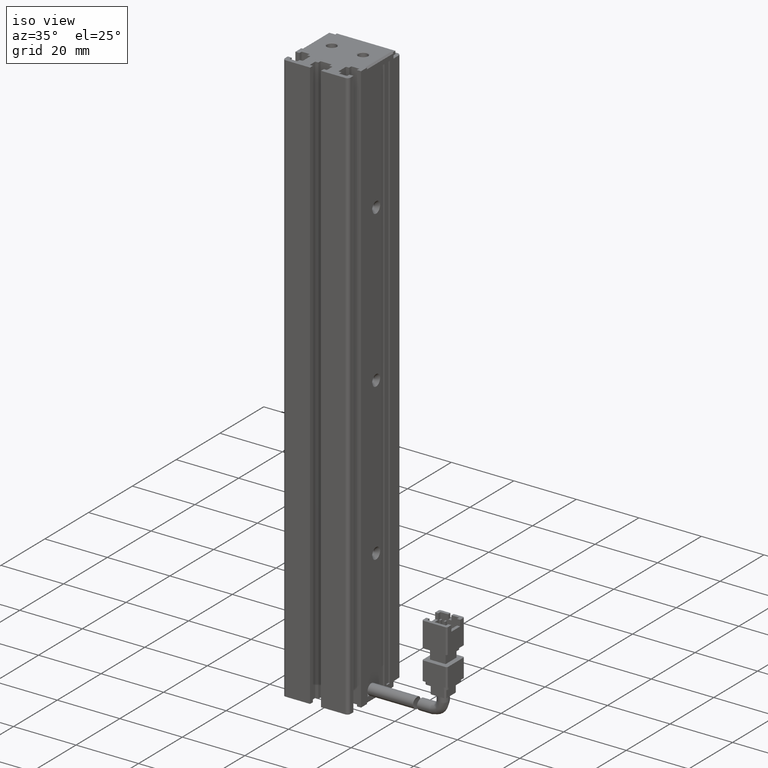
[diagram: clean part render]
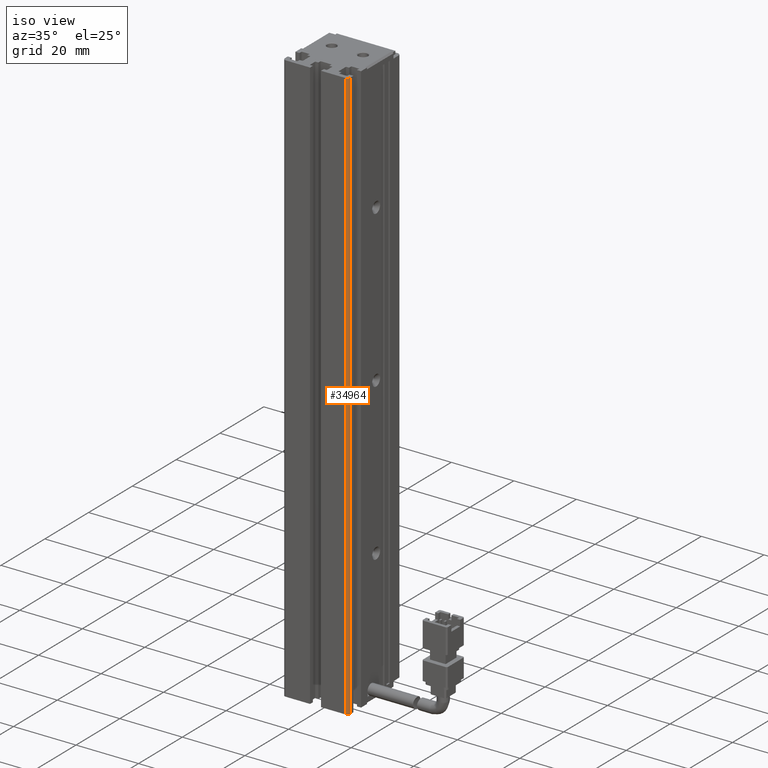
[diagram: same view with one face highlighted and labeled with its STEP entity id]
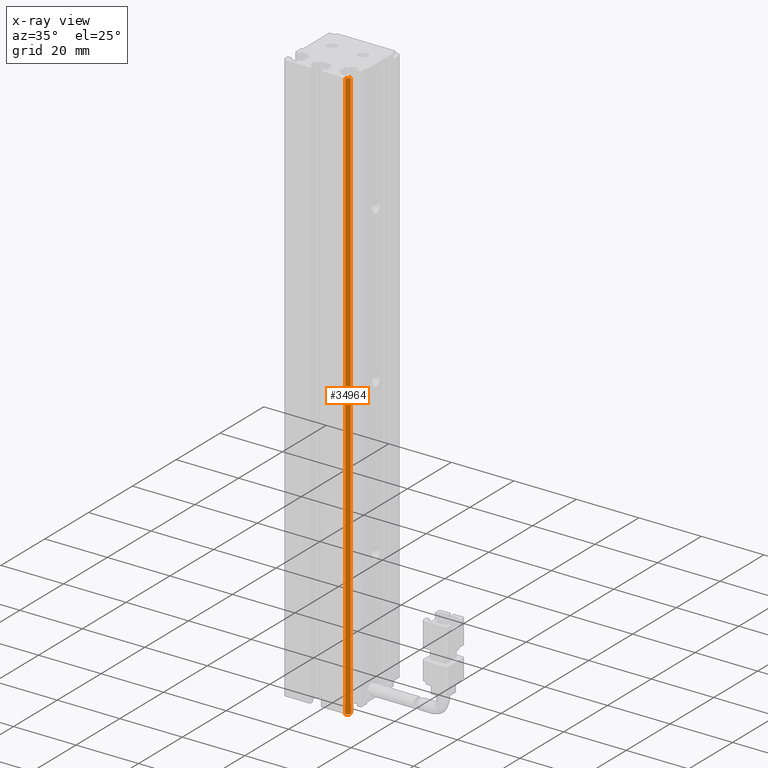
[diagram: x-ray of the same camera — body ghosted, the highlighted face saturated]
A machine part, iso view. The second image highlights one B-rep face of the part: STEP entity #34964.
The next image is the same camera in x-ray: the body ghosted, the highlighted face saturated — about 0% of this face is hidden behind the body in this view.
In plain terms, the highlighted cylindrical surface (edge-blend (fillet) strip) has radius 1 mm, axis along (-0, -0, -1).
Its self-contained STEP definition (entity closure, byte-faithful):
#427 = VERTEX_POINT ( 'NONE', #34402 ) ;
#522 = DIRECTION ( 'NONE',  ( -1.000000000000000000, 0.0000000000000000000, 0.0000000000000000000 ) ) ;
#3092 = ORIENTED_EDGE ( 'NONE', *, *, #47761, .T. ) ;
#3347 = VECTOR ( 'NONE', #28611, 1000.000000000000000 ) ;
#3386 = ORIENTED_EDGE ( 'NONE', *, *, #23377, .T. ) ;
#4337 = DIRECTION ( 'NONE',  ( 0.0000000000000000000, 0.0000000000000000000, 1.000000000000000000 ) ) ;
#4886 = CARTESIAN_POINT ( 'NONE',  ( 51.42537974683541800, 11.99073232304837000, -207.0000000000000300 ) ) ;
#11082 = CARTESIAN_POINT ( 'NONE',  ( 51.42537974683541800, 11.99073232304837000, -23.00000000000000700 ) ) ;
#11470 = CIRCLE ( 'NONE', #26201, 1.000000000000000900 ) ;
#15797 = CARTESIAN_POINT ( 'NONE',  ( 50.42537974683541800, 11.99073232304837000, -23.00000000000000700 ) ) ;
#15860 = ORIENTED_EDGE ( 'NONE', *, *, #38428, .T. ) ;
#17333 = CARTESIAN_POINT ( 'NONE',  ( 50.42537974683541800, 10.99073232304837000, -23.00000000000000700 ) ) ;
#20994 = DIRECTION ( 'NONE',  ( 0.0000000000000000000, 0.0000000000000000000, 1.000000000000000000 ) ) ;
#21494 = DIRECTION ( 'NONE',  ( -0.0000000000000000000, -0.0000000000000000000, -1.000000000000000000 ) ) ;
#23377 = EDGE_CURVE ( 'NONE', #28445, #40133, #11470, .T. ) ;
#25750 = ORIENTED_EDGE ( 'NONE', *, *, #45720, .T. ) ;
#26201 = AXIS2_PLACEMENT_3D ( 'NONE', #43821, #21494, #47596 ) ;
#26767 = LINE ( 'NONE', #17333, #3347 ) ;
#28322 = CARTESIAN_POINT ( 'NONE',  ( 51.42537974683541800, 11.99073232304837000, -23.00000000000000700 ) ) ;
#28445 = VERTEX_POINT ( 'NONE', #11082 ) ;
#28611 = DIRECTION ( 'NONE',  ( -0.0000000000000000000, 0.0000000000000000000, -1.000000000000000000 ) ) ;
#29947 = CIRCLE ( 'NONE', #31484, 1.000000000000000900 ) ;
#30579 = DIRECTION ( 'NONE',  ( -1.000000000000000000, 0.0000000000000000000, 0.0000000000000000000 ) ) ;
#31484 = AXIS2_PLACEMENT_3D ( 'NONE', #41607, #4337, #30579 ) ;
#34402 = CARTESIAN_POINT ( 'NONE',  ( 50.42537974683541800, 10.99073232304837000, -207.0000000000000300 ) ) ;
#34964 = ADVANCED_FACE ( 'NONE', ( #45925 ), #44782, .T. ) ;
#35463 = VERTEX_POINT ( 'NONE', #4886 ) ;
#37919 = LINE ( 'NONE', #28322, #42585 ) ;
#38428 = EDGE_CURVE ( 'NONE', #40133, #427, #26767, .T. ) ;
#38495 = AXIS2_PLACEMENT_3D ( 'NONE', #15797, #45633, #522 ) ;
#40120 = EDGE_LOOP ( 'NONE', ( #3386, #15860, #25750, #3092 ) ) ;
#40133 = VERTEX_POINT ( 'NONE', #43771 ) ;
#41607 = CARTESIAN_POINT ( 'NONE',  ( 50.42537974683541800, 11.99073232304837000, -207.0000000000000300 ) ) ;
#42585 = VECTOR ( 'NONE', #20994, 1000.000000000000000 ) ;
#43771 = CARTESIAN_POINT ( 'NONE',  ( 50.42537974683541800, 10.99073232304837000, -23.00000000000000700 ) ) ;
#43821 = CARTESIAN_POINT ( 'NONE',  ( 50.42537974683541800, 11.99073232304837000, -23.00000000000000700 ) ) ;
#44782 = CYLINDRICAL_SURFACE ( 'NONE', #38495, 1.000000000000000900 ) ;
#45633 = DIRECTION ( 'NONE',  ( -0.0000000000000000000, -0.0000000000000000000, -1.000000000000000000 ) ) ;
#45720 = EDGE_CURVE ( 'NONE', #427, #35463, #29947, .T. ) ;
#45925 = FACE_OUTER_BOUND ( 'NONE', #40120, .T. ) ;
#47596 = DIRECTION ( 'NONE',  ( -1.000000000000000000, 0.0000000000000000000, 0.0000000000000000000 ) ) ;
#47761 = EDGE_CURVE ( 'NONE', #35463, #28445, #37919, .T. ) ;